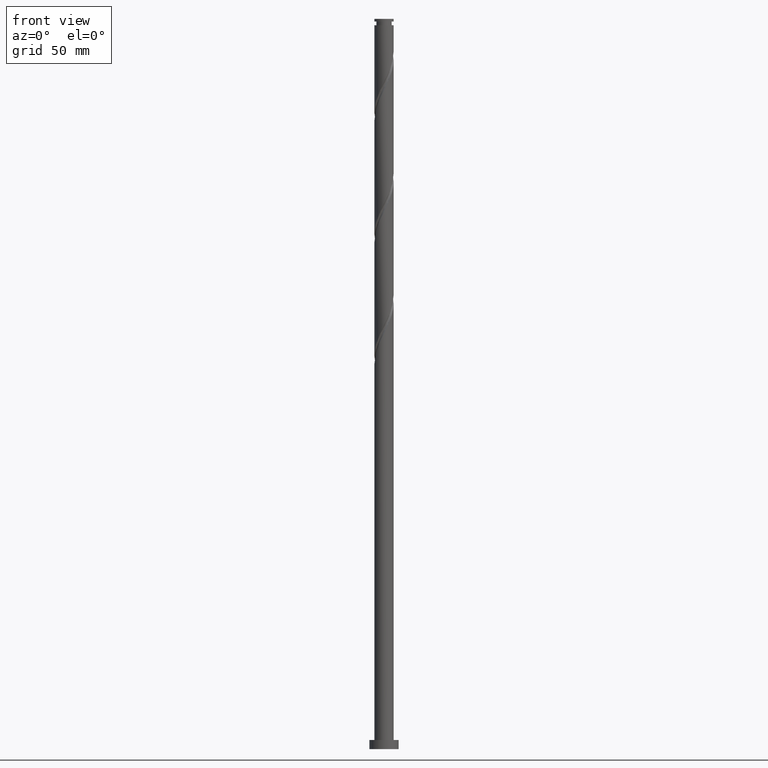
[diagram: clean part render]
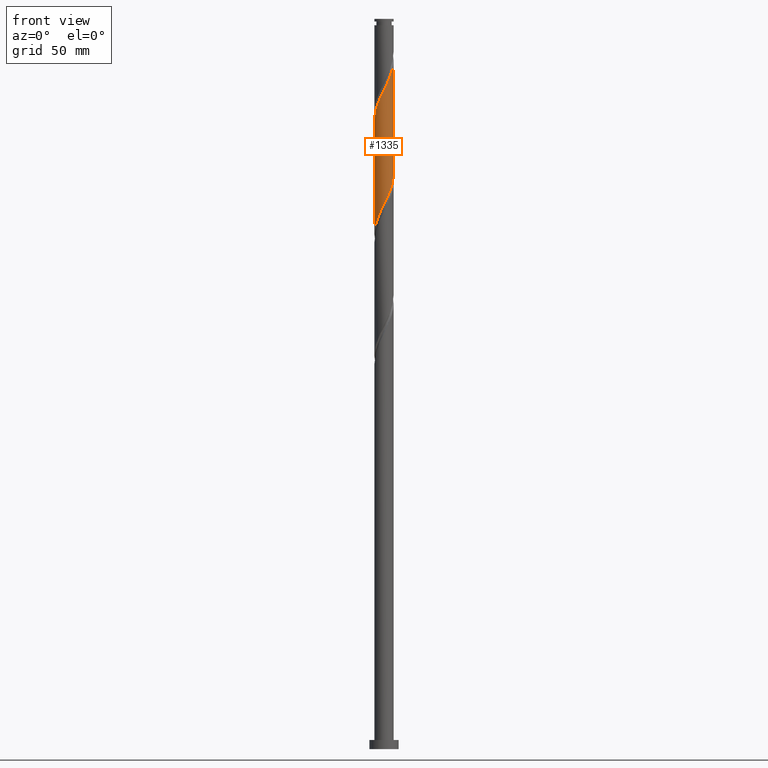
[diagram: same view with one face highlighted and labeled with its STEP entity id]
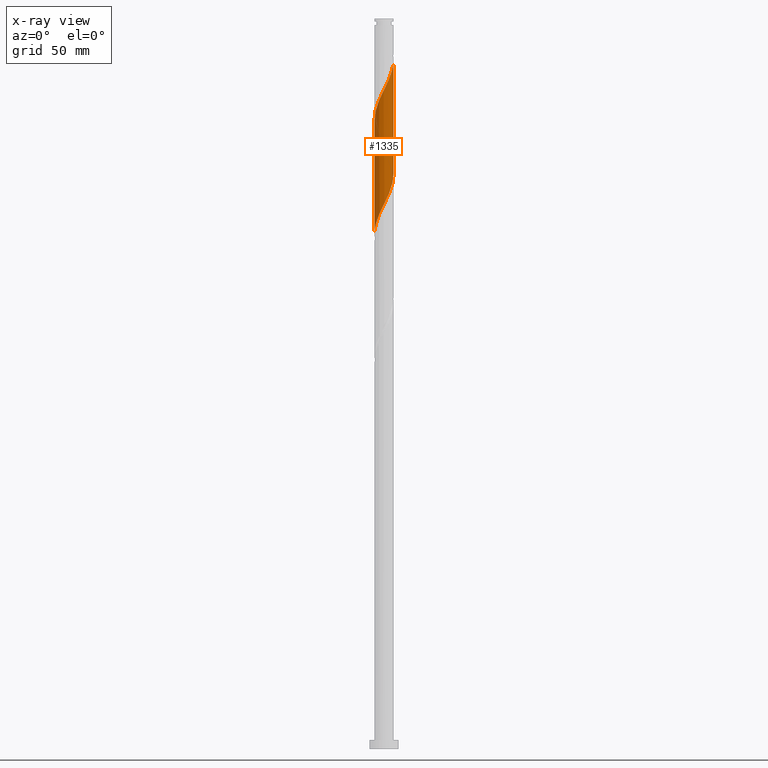
[diagram: x-ray of the same camera — body ghosted, the highlighted face saturated]
A machine part, front view. The second image highlights one B-rep face of the part: STEP entity #1335.
The next image is the same camera in x-ray: the body ghosted, the highlighted face saturated — about 0% of this face is hidden behind the body in this view.
In plain terms, the highlighted cylindrical surface (edge-blend (fillet) strip) has radius 5.25 mm, axis along (-0, -0, -1).
Its self-contained STEP definition (entity closure, byte-faithful):
#36 = CARTESIAN_POINT ( 'NONE',  ( -0.04779884617294594129, -5.249782402186265351, 360.9268371093418750 ) ) ;
#46 = EDGE_CURVE ( 'NONE', #1296, #1942, #1959, .T. ) ;
#56 = CARTESIAN_POINT ( 'NONE',  ( -5.173340098354294092, -1.050491511376014042, 346.4823926648974748 ) ) ;
#75 = DIRECTION ( 'NONE',  ( -0.000000000000000000, -0.000000000000000000, -1.000000000000000000 ) ) ;
#76 = CARTESIAN_POINT ( 'NONE',  ( 3.869364956144051959, -3.548311547224173523, 369.8157259982307323 ) ) ;
#82 = VERTEX_POINT ( 'NONE', #344 ) ;
#90 = CARTESIAN_POINT ( 'NONE',  ( 0.5995732108659352910, -5.244758541012672026, 299.8157259982309029 ) ) ;
#92 = CARTESIAN_POINT ( 'NONE',  ( -5.250000000000000000, 0.000000000000000000, 400.0000000000000000 ) ) ;
#118 = CARTESIAN_POINT ( 'NONE',  ( 4.570344347720266320, -2.583496186035776354, 309.8157259982307892 ) ) ;
#184 = CARTESIAN_POINT ( 'NONE',  ( 3.496422384488685697, -3.954998191903503102, 368.7046148871198170 ) ) ;
#204 = CARTESIAN_POINT ( 'NONE',  ( -2.680972866025394197, -4.547456946508574127, 355.3712815537863321 ) ) ;
#215 = CARTESIAN_POINT ( 'NONE',  ( 4.978069106951918954, -1.667731383170261594, 374.2601704426753031 ) ) ;
#242 = DIRECTION ( 'NONE',  ( -1.000000000000000000, 0.000000000000000000, 0.000000000000000000 ) ) ;
#249 = CARTESIAN_POINT ( 'NONE',  ( 4.298807956775184458, -3.063858733603725959, 308.7046148871197602 ) ) ;
#279 = EDGE_CURVE ( 'NONE', #82, #1296, #1788, .T. ) ;
#339 = CARTESIAN_POINT ( 'NONE',  ( 5.153354738608597607, -1.144515236584392692, 375.3712815537862184 ) ) ;
#344 = CARTESIAN_POINT ( 'NONE',  ( 5.250000000000006217, -2.989683084133032828E-16, 377.6902827547093580 ) ) ;
#351 = CARTESIAN_POINT ( 'NONE',  ( -5.226019884829717022, -0.5012146878977671305, 345.3712815537864458 ) ) ;
#366 = DIRECTION ( 'NONE',  ( -0.000000000000000000, -0.000000000000000000, -1.000000000000000000 ) ) ;
#372 = CARTESIAN_POINT ( 'NONE',  ( 1.585498099403859662, -5.035193736640157347, 364.2601704426754168 ) ) ;
#407 = CARTESIAN_POINT ( 'NONE',  ( -0.5039755185200520682, -5.254806263359850682, 297.5935037760086175 ) ) ;
#419 = CARTESIAN_POINT ( 'NONE',  ( -4.978069106951914513, -1.667731383170254933, 285.3712815537863321 ) ) ;
#442 = CARTESIAN_POINT ( 'NONE',  ( -2.597726805279741313, -4.595519082089047913, 293.1490593315641604 ) ) ;
#450 = CARTESIAN_POINT ( 'NONE',  ( -5.250000000000000000, -0.2991121215937809774, 282.5467605511368561 ) ) ;
#452 = CARTESIAN_POINT ( 'NONE',  ( -5.249999999999999112, -6.936064755188675091E-15, 281.9411692417523341 ) ) ;
#481 = VECTOR ( 'NONE', #366, 1000.000000000000000 ) ;
#499 = CARTESIAN_POINT ( 'NONE',  ( -2.178945289945503294, -4.776473324894045192, 356.4823926648975316 ) ) ;
#537 = CARTESIAN_POINT ( 'NONE',  ( -3.567856639204736613, -3.890678500055767319, 353.1490593315642172 ) ) ;
#558 = CARTESIAN_POINT ( 'NONE',  ( -5.250000000000006217, 5.710294690694092568E-15, 344.3569494213759867 ) ) ;
#564 = CARTESIAN_POINT ( 'NONE',  ( -4.242307527799415112, -3.141624902544839060, 288.7046148871198170 ) ) ;
#594 = CARTESIAN_POINT ( 'NONE',  ( 5.173340098354292316, -1.050491511376014708, 313.1490593315642741 ) ) ;
#603 = CARTESIAN_POINT ( 'NONE',  ( -3.869364956144048850, -3.548311547224167750, 289.8157259982307892 ) ) ;
#657 = CARTESIAN_POINT ( 'NONE',  ( 5.250000000000007105, -0.2991121215937699307, 377.0846914453247223 ) ) ;
#676 = CYLINDRICAL_SURFACE ( 'NONE', #936, 5.250000000000000000 ) ;
#677 = CARTESIAN_POINT ( 'NONE',  ( -1.676917713865612836, -5.005489703279514480, 357.5935037760086175 ) ) ;
#723 = CARTESIAN_POINT ( 'NONE',  ( 1.138245462365769844, -5.125124122146091032, 300.9268371093419319 ) ) ;
#748 = CARTESIAN_POINT ( 'NONE',  ( 5.250000000000000888, -0.2511809962554351627, 314.7659540495216106 ) ) ;
#761 =( BOUNDED_CURVE ( )  B_SPLINE_CURVE ( 2, ( #1429, #1612, #351, #56, #1141, #974, #1604, #1269, #1765, #537, #1584, #204, #499, #677, #965, #1298, #36, #991, #1920, #372, #1623, #842, #1470, #184, #76, #983, #1890, #1107, #215, #339, #955, #657, #1278 ),
 .UNSPECIFIED., .F., .T. ) 
 B_SPLINE_CURVE_WITH_KNOTS ( ( 3, 2, 2, 2, 2, 2, 2, 2, 2, 2, 2, 2, 2, 2, 2, 2, 3 ),
 ( 0.5545286012773117390, 0.5583333333333333481, 0.5666666666666666519, 0.5749999999999999556, 0.5833333333333332593, 0.5916666666666666741, 0.5999999999999999778, 0.6083333333333333925, 0.6166666666666666963, 0.6250000000000000000, 0.6333333333333333037, 0.6416666666666666075, 0.6500000000000000222, 0.6583333333333333259, 0.6666666666666667407, 0.6750000000000000444, 0.6795286012773115170 ),
 .UNSPECIFIED. ) 
 CURVE ( )  GEOMETRIC_REPRESENTATION_ITEM ( )  RATIONAL_B_SPLINE_CURVE ( ( 0.9066196499552294785, 0.9068171577856423138, 0.9090909090909411461, 0.9041108139711893088, 0.9090909090909411461, 0.9041108139711893088, 0.9090909090909411461, 0.9041108139711893088, 0.9090909090909411461, 0.9041108139711893088, 0.9090909090909411461, 0.9041108139711893088, 0.9090909090909411461, 0.9041108139711893088, 0.9090909090909411461, 0.9041108139711893088, 0.9090909090909411461, 0.9041108139711893088, 0.9090909090909411461, 0.9041108139711893088, 0.9090909090909411461, 0.9041108139711893088, 0.9090909090909411461, 0.9041108139711893088, 0.9090909090909411461, 0.9041108139711893088, 0.9090909090909411461, 0.9041108139711893088, 0.9090909090909411461, 0.9041108139711893088, 0.9090909090909411461, 0.9063845652764882521, 0.9066196499552294785 ) ) 
 REPRESENTATION_ITEM ( '' )  );
#771 = EDGE_LOOP ( 'NONE', ( #1610, #1255, #782, #1367 ) ) ;
#782 = ORIENTED_EDGE ( 'NONE', *, *, #1766, .T. ) ;
#803 = DIRECTION ( 'NONE',  ( -0.000000000000000000, -0.000000000000000000, -1.000000000000000000 ) ) ;
#842 = CARTESIAN_POINT ( 'NONE',  ( 2.597726805279741757, -4.595519082089055019, 366.4823926648974179 ) ) ;
#861 = LINE ( 'NONE', #92, #1722 ) ;
#868 = CARTESIAN_POINT ( 'NONE',  ( 5.250000000000000888, 4.753596103771549200E-15, 315.2745025750855916 ) ) ;
#889 = CARTESIAN_POINT ( 'NONE',  ( 4.841880738665349959, -2.103133638467833411, 310.9268371093419887 ) ) ;
#936 = AXIS2_PLACEMENT_3D ( 'NONE', #1313, #75, #242 ) ;
#955 = CARTESIAN_POINT ( 'NONE',  ( 5.216027204956867891, -0.5962886860824341273, 376.4823926648974179 ) ) ;
#965 = CARTESIAN_POINT ( 'NONE',  ( -1.138245462365774729, -5.125124122146097250, 358.7046148871197033 ) ) ;
#974 = CARTESIAN_POINT ( 'NONE',  ( -4.841880738665356176, -2.103133638467831634, 348.7046148871197033 ) ) ;
#983 = CARTESIAN_POINT ( 'NONE',  ( 4.242307527799417777, -3.141624902544846609, 370.9268371093419319 ) ) ;
#991 = CARTESIAN_POINT ( 'NONE',  ( 0.5039755185200481824, -5.254806263359855123, 362.0379482204530177 ) ) ;
#1008 = VERTEX_POINT ( 'NONE', #558 ) ;
#1017 = CARTESIAN_POINT ( 'NONE',  ( 3.933332297989958537, -3.477268616829744197, 307.5935037760085038 ) ) ;
#1050 = CARTESIAN_POINT ( 'NONE',  ( -3.047074594884211951, -4.275258636996270845, 292.0379482204530746 ) ) ;
#1107 = CARTESIAN_POINT ( 'NONE',  ( 4.802783475295240301, -2.190947529756130052, 373.1490593315641036 ) ) ;
#1141 = CARTESIAN_POINT ( 'NONE',  ( -5.007610418509825578, -1.576812574921922616, 347.5935037760086175 ) ) ;
#1186 = CARTESIAN_POINT ( 'NONE',  ( 1.676917713865607507, -5.005489703279510927, 302.0379482204530177 ) ) ;
#1208 = CARTESIAN_POINT ( 'NONE',  ( -1.585498099403861882, -5.035193736640150242, 295.3712815537863889 ) ) ;
#1219 = CARTESIAN_POINT ( 'NONE',  ( -4.522545501547324598, -2.666286216150480559, 287.5935037760085606 ) ) ;
#1255 = ORIENTED_EDGE ( 'NONE', *, *, #1872, .F. ) ;
#1269 = CARTESIAN_POINT ( 'NONE',  ( -4.298807956775191563, -3.063858733603724627, 350.9268371093418750 ) ) ;
#1278 = CARTESIAN_POINT ( 'NONE',  ( 5.250000000000006217, -2.989683084133032828E-16, 377.6902827547093580 ) ) ;
#1296 = VERTEX_POINT ( 'NONE', #1641 ) ;
#1298 = CARTESIAN_POINT ( 'NONE',  ( -0.5995732108659377335, -5.244758541012678243, 359.8157259982307323 ) ) ;
#1313 = CARTESIAN_POINT ( 'NONE',  ( 0.000000000000000000, 0.000000000000000000, 400.0000000000000000 ) ) ;
#1335 = ADVANCED_FACE ( 'NONE', ( #1632 ), #676, .T. ) ;
#1362 = CARTESIAN_POINT ( 'NONE',  ( 2.680972866025387980, -4.547456946508572351, 304.2601704426753031 ) ) ;
#1367 = ORIENTED_EDGE ( 'NONE', *, *, #46, .F. ) ;
#1373 = CARTESIAN_POINT ( 'NONE',  ( 5.007610418509818473, -1.576812574921925947, 312.0379482204530746 ) ) ;
#1429 = CARTESIAN_POINT ( 'NONE',  ( -5.250000000000006217, 5.710294690694092568E-15, 344.3569494213759299 ) ) ;
#1434 = CARTESIAN_POINT ( 'NONE',  ( 5.250000000000000000, 6.429395695523603167E-16, 400.0000000000000000 ) ) ;
#1470 = CARTESIAN_POINT ( 'NONE',  ( 3.047074594884212395, -4.275258636996277950, 367.5935037760084469 ) ) ;
#1497 = CARTESIAN_POINT ( 'NONE',  ( 3.567856639204733060, -3.890678500055764655, 306.4823926648974748 ) ) ;
#1508 = CARTESIAN_POINT ( 'NONE',  ( -5.153354738608592278, -1.144515236584386253, 284.2601704426752462 ) ) ;
#1584 = CARTESIAN_POINT ( 'NONE',  ( -3.124414752615067403, -4.219067723282170057, 354.2601704426751894 ) ) ;
#1604 = CARTESIAN_POINT ( 'NONE',  ( -4.570344347720273426, -2.583496186035778575, 349.8157259982307323 ) ) ;
#1610 = ORIENTED_EDGE ( 'NONE', *, *, #279, .F. ) ;
#1612 = CARTESIAN_POINT ( 'NONE',  ( -5.250000000000004441, -0.2511809962554525932, 344.8654979469401383 ) ) ;
#1623 = CARTESIAN_POINT ( 'NONE',  ( 2.091612452341800932, -4.815356409364604851, 365.3712815537862753 ) ) ;
#1632 = FACE_OUTER_BOUND ( 'NONE', #771, .T. ) ;
#1641 = CARTESIAN_POINT ( 'NONE',  ( 5.250000000000000888, 4.753596103771549200E-15, 315.2745025750855916 ) ) ;
#1651 = CARTESIAN_POINT ( 'NONE',  ( 3.124414752615059410, -4.219067723282167393, 305.3712815537862184 ) ) ;
#1661 = CARTESIAN_POINT ( 'NONE',  ( -3.496422384488684809, -3.954998191903495108, 290.9268371093419887 ) ) ;
#1681 = CARTESIAN_POINT ( 'NONE',  ( -5.216027204956860786, -0.5962886860824313517, 283.1490593315640467 ) ) ;
#1693 = CARTESIAN_POINT ( 'NONE',  ( -5.249999999999998224, -6.936064755188675091E-15, 281.9411692417523341 ) ) ;
#1722 = VECTOR ( 'NONE', #803, 1000.000000000000000 ) ;
#1765 = CARTESIAN_POINT ( 'NONE',  ( -3.933332297989963866, -3.477268616829745529, 352.0379482204530177 ) ) ;
#1766 = EDGE_CURVE ( 'NONE', #1008, #1942, #861, .T. ) ;
#1788 = LINE ( 'NONE', #1434, #481 ) ;
#1809 = CARTESIAN_POINT ( 'NONE',  ( 0.04779884617294164612, -5.249782402186259134, 298.7046148871197033 ) ) ;
#1819 = CARTESIAN_POINT ( 'NONE',  ( 5.226019884829709028, -0.5012146878977704612, 314.2601704426753031 ) ) ;
#1831 = CARTESIAN_POINT ( 'NONE',  ( -2.091612452341802264, -4.815356409364597745, 294.2601704426752462 ) ) ;
#1841 = CARTESIAN_POINT ( 'NONE',  ( -4.802783475295234972, -2.190947529756126499, 286.4823926648975316 ) ) ;
#1872 = EDGE_CURVE ( 'NONE', #1008, #82, #761, .T. ) ;
#1890 = CARTESIAN_POINT ( 'NONE',  ( 4.522545501547327262, -2.666286216150488553, 372.0379482204530746 ) ) ;
#1920 = CARTESIAN_POINT ( 'NONE',  ( 1.044736808961954866, -5.145000000000004903, 363.1490593315641604 ) ) ;
#1942 = VERTEX_POINT ( 'NONE', #452 ) ;
#1959 =( BOUNDED_CURVE ( )  B_SPLINE_CURVE ( 2, ( #868, #748, #1819, #594, #1373, #889, #118, #249, #1017, #1497, #1651, #1362, #1993, #1186, #723, #90, #1809, #407, #1963, #1208, #1831, #442, #1050, #1661, #603, #564, #1219, #1841, #419, #1508, #1681, #450, #1693 ),
 .UNSPECIFIED., .F., .T. ) 
 B_SPLINE_CURVE_WITH_KNOTS ( ( 3, 2, 2, 2, 2, 2, 2, 2, 2, 2, 2, 2, 2, 2, 2, 2, 3 ),
 ( 0.5545286012773114059, 0.5583333333333333481, 0.5666666666666666519, 0.5749999999999999556, 0.5833333333333333703, 0.5916666666666666741, 0.5999999999999999778, 0.6083333333333332815, 0.6166666666666666963, 0.6250000000000000000, 0.6333333333333333037, 0.6416666666666667185, 0.6500000000000000222, 0.6583333333333333259, 0.6666666666666666297, 0.6750000000000000444, 0.6795286012773112949 ),
 .UNSPECIFIED. ) 
 CURVE ( )  GEOMETRIC_REPRESENTATION_ITEM ( )  RATIONAL_B_SPLINE_CURVE ( ( 0.9066196499552243715, 0.9068171577856372068, 0.9090909090909361501, 0.9041108139711843128, 0.9090909090909361501, 0.9041108139711843128, 0.9090909090909361501, 0.9041108139711843128, 0.9090909090909361501, 0.9041108139711843128, 0.9090909090909361501, 0.9041108139711843128, 0.9090909090909361501, 0.9041108139711843128, 0.9090909090909361501, 0.9041108139711843128, 0.9090909090909361501, 0.9041108139711843128, 0.9090909090909361501, 0.9041108139711843128, 0.9090909090909361501, 0.9041108139711843128, 0.9090909090909361501, 0.9041108139711843128, 0.9090909090909361501, 0.9041108139711843128, 0.9090909090909361501, 0.9041108139711843128, 0.9090909090909361501, 0.9041108139711843128, 0.9090909090909361501, 0.9063845652764833671, 0.9066196499552243715 ) ) 
 REPRESENTATION_ITEM ( '' )  );
#1963 = CARTESIAN_POINT ( 'NONE',  ( -1.044736808961955532, -5.145000000000000462, 296.4823926648975316 ) ) ;
#1993 = CARTESIAN_POINT ( 'NONE',  ( 2.178945289945498409, -4.776473324894038974, 303.1490593315641036 ) ) ;